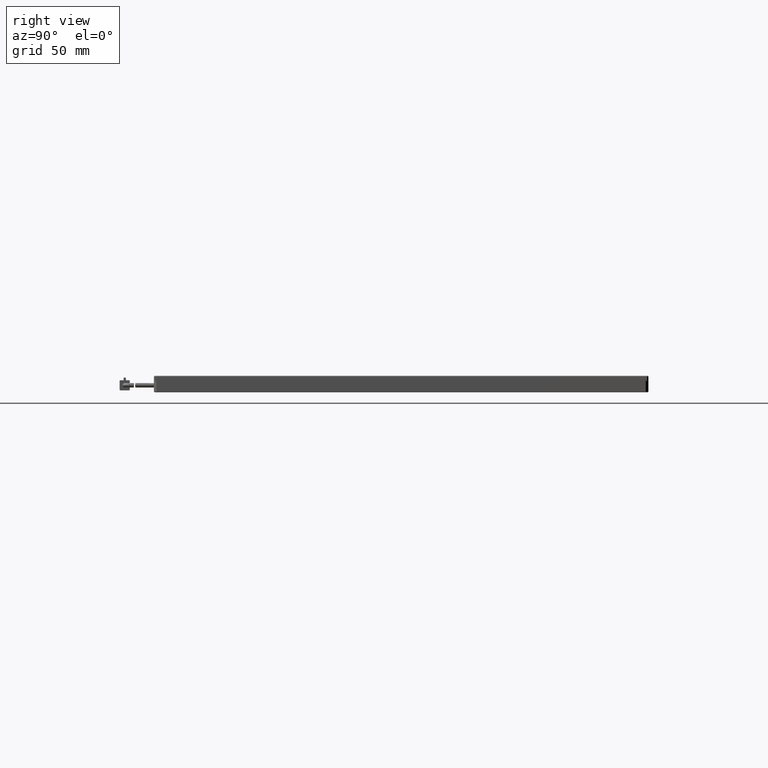
[diagram: clean part render]
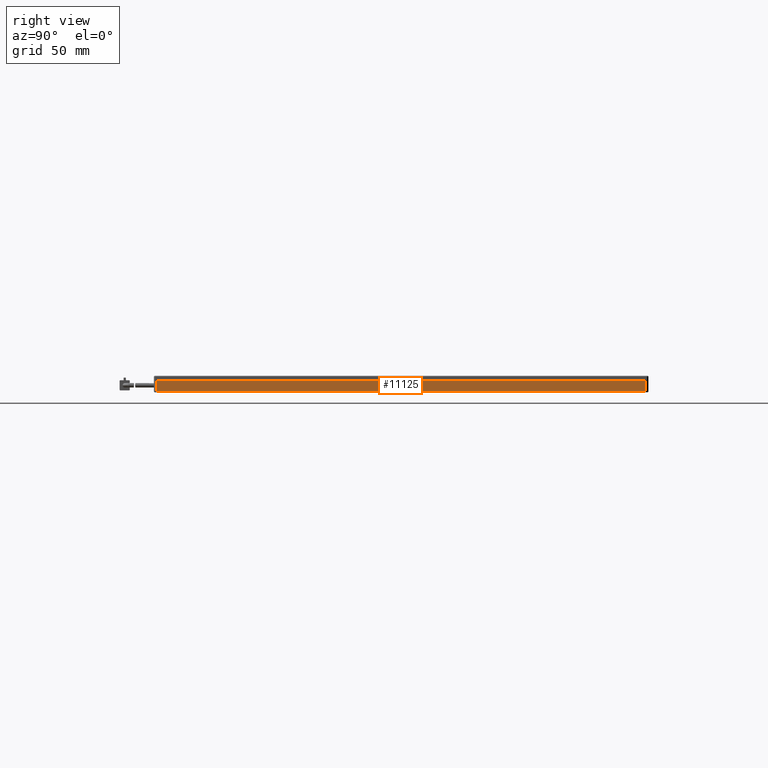
[diagram: same view with one face highlighted and labeled with its STEP entity id]
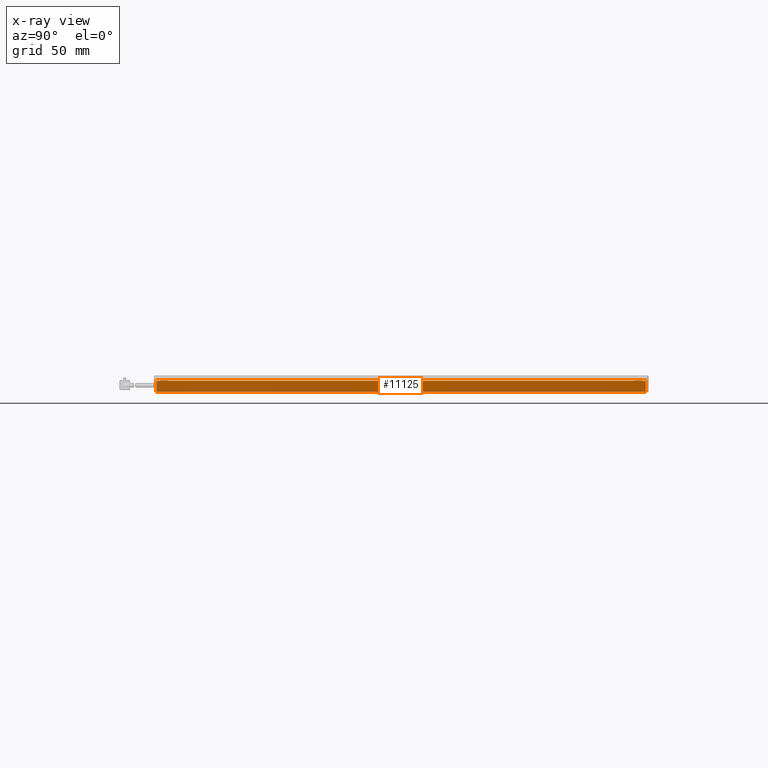
[diagram: x-ray of the same camera — body ghosted, the highlighted face saturated]
A machine part, right view. The second image highlights one B-rep face of the part: STEP entity #11125.
The next image is the same camera in x-ray: the body ghosted, the highlighted face saturated — about 0% of this face is hidden behind the body in this view.
In plain terms, the highlighted planar face has unit normal (-1, 0, 0).
Its self-contained STEP definition (entity closure, byte-faithful):
#627 = EDGE_LOOP ( 'NONE', ( #15999, #994, #19853, #13566 ) ) ;
#865 = CARTESIAN_POINT ( 'NONE',  ( 160.8515982014623100, 213.4229729729730100, 4.250000000000000000 ) ) ;
#932 = AXIS2_PLACEMENT_3D ( 'NONE', #4144, #12871, #1016 ) ;
#994 = ORIENTED_EDGE ( 'NONE', *, *, #13431, .F. ) ;
#1016 = DIRECTION ( 'NONE',  ( 0.0000000000000000000, 0.0000000000000000000, 1.000000000000000000 ) ) ;
#1762 = DIRECTION ( 'NONE',  ( 0.0000000000000000000, 1.000000000000000000, -0.0000000000000000000 ) ) ;
#4144 = CARTESIAN_POINT ( 'NONE',  ( 160.8515982014623100, -174.5770270270269300, 4.250000000000000000 ) ) ;
#4764 = LINE ( 'NONE', #6860, #9821 ) ;
#4996 = CARTESIAN_POINT ( 'NONE',  ( 160.8515982014623100, -172.5770270270269300, 4.250000000000000000 ) ) ;
#5482 = LINE ( 'NONE', #18172, #13516 ) ;
#6521 = DIRECTION ( 'NONE',  ( -0.0000000000000000000, -0.0000000000000000000, -1.000000000000000000 ) ) ;
#6802 = VERTEX_POINT ( 'NONE', #865 ) ;
#6860 = CARTESIAN_POINT ( 'NONE',  ( 160.8515982014623100, -172.5770270270269300, 4.250000000000000000 ) ) ;
#9736 = VERTEX_POINT ( 'NONE', #4996 ) ;
#9821 = VECTOR ( 'NONE', #11707, 1000.000000000000000 ) ;
#9934 = LINE ( 'NONE', #11807, #21375 ) ;
#11125 = ADVANCED_FACE ( 'NONE', ( #14085 ), #19590, .F. ) ;
#11707 = DIRECTION ( 'NONE',  ( 0.0000000000000000000, 0.0000000000000000000, 1.000000000000000000 ) ) ;
#11807 = CARTESIAN_POINT ( 'NONE',  ( 160.8515982014623100, -174.5770270270269300, -4.250000000000000000 ) ) ;
#11978 = EDGE_CURVE ( 'NONE', #16970, #9736, #4764, .T. ) ;
#12871 = DIRECTION ( 'NONE',  ( -1.000000000000000000, 0.0000000000000000000, 0.0000000000000000000 ) ) ;
#13431 = EDGE_CURVE ( 'NONE', #6802, #20786, #14230, .T. ) ;
#13516 = VECTOR ( 'NONE', #18015, 1000.000000000000000 ) ;
#13566 = ORIENTED_EDGE ( 'NONE', *, *, #11978, .F. ) ;
#13599 = EDGE_CURVE ( 'NONE', #16970, #20786, #9934, .T. ) ;
#14085 = FACE_OUTER_BOUND ( 'NONE', #627, .T. ) ;
#14230 = LINE ( 'NONE', #14956, #21111 ) ;
#14956 = CARTESIAN_POINT ( 'NONE',  ( 160.8515982014623100, 213.4229729729729600, 4.250000000000000000 ) ) ;
#15999 = ORIENTED_EDGE ( 'NONE', *, *, #13599, .T. ) ;
#16970 = VERTEX_POINT ( 'NONE', #21983 ) ;
#18015 = DIRECTION ( 'NONE',  ( 0.0000000000000000000, 1.000000000000000000, -0.0000000000000000000 ) ) ;
#18172 = CARTESIAN_POINT ( 'NONE',  ( 160.8515982014623100, -174.5770270270269300, 4.250000000000000000 ) ) ;
#18643 = CARTESIAN_POINT ( 'NONE',  ( 160.8515982014623100, 213.4229729729730100, -4.250000000000003600 ) ) ;
#19590 = PLANE ( 'NONE',  #932 ) ;
#19853 = ORIENTED_EDGE ( 'NONE', *, *, #21112, .F. ) ;
#20786 = VERTEX_POINT ( 'NONE', #18643 ) ;
#21111 = VECTOR ( 'NONE', #6521, 1000.000000000000000 ) ;
#21112 = EDGE_CURVE ( 'NONE', #9736, #6802, #5482, .T. ) ;
#21375 = VECTOR ( 'NONE', #1762, 1000.000000000000000 ) ;
#21983 = CARTESIAN_POINT ( 'NONE',  ( 160.8515982014623100, -172.5770270270269300, -4.250000000000001800 ) ) ;